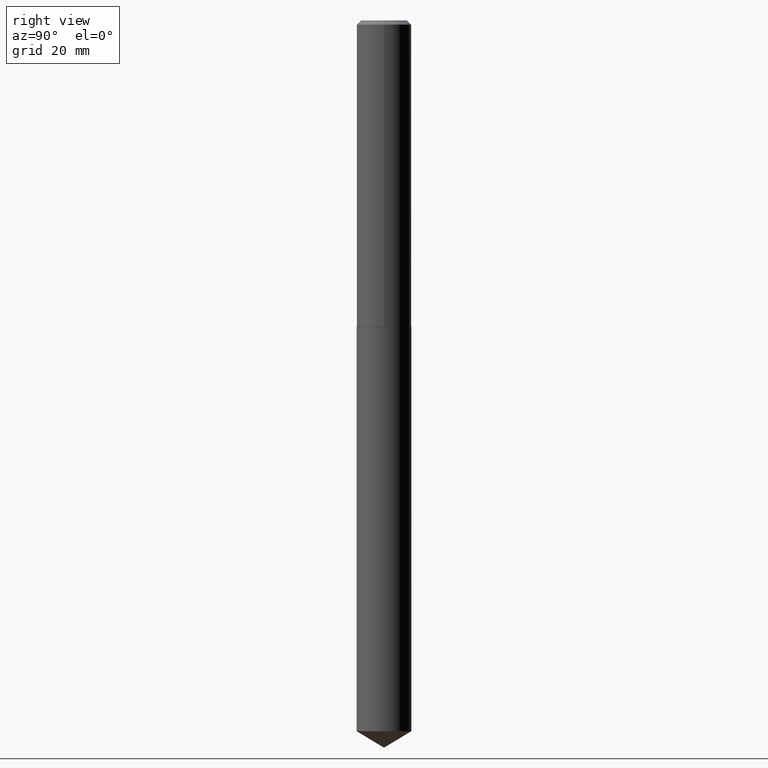
[diagram: clean part render]
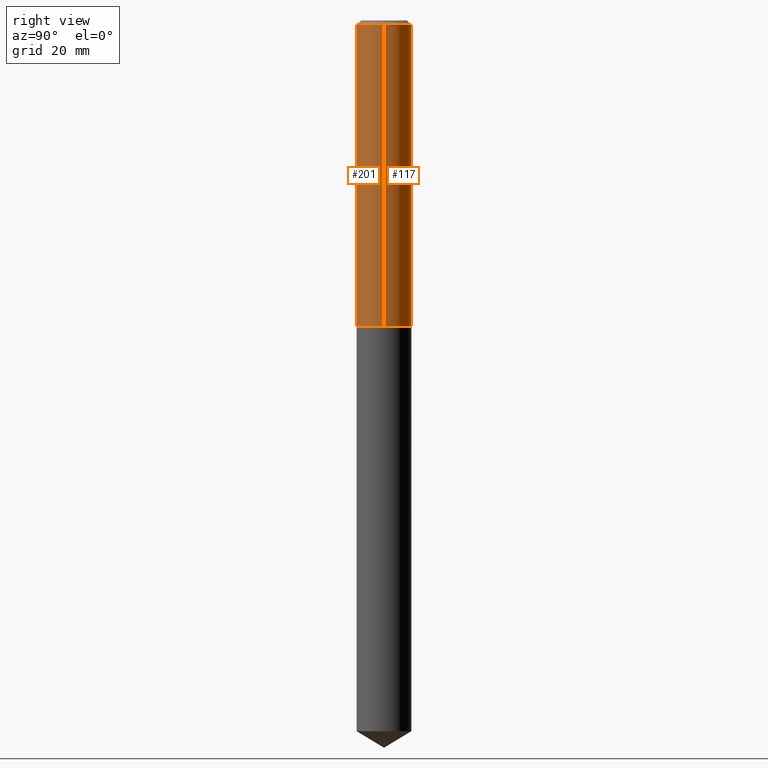
[diagram: same view with one multi-face feature highlighted, each face labeled with its STEP entity id]
A machine part, right view. The highlighted faces form ONE feature: a constant-radius fillet chain: 2 tangent blend faces with common blend radius 5 mm. The faces share edges in the B-rep.
Their STEP definitions:
[1] entity #201 (Cylinder):
#6 = ORIENTED_EDGE ( 'NONE', *, *, #260, .F. ) ;
#30 = VERTEX_POINT ( 'NONE', #242 ) ;
#34 = CARTESIAN_POINT ( 'NONE',  ( 0.000000000000000000, 0.000000000000000000, 0.000000000000000000 ) ) ;
#40 = FACE_OUTER_BOUND ( 'NONE', #273, .T. ) ;
#44 = CARTESIAN_POINT ( 'NONE',  ( 5.390302342593279597E-29, -7.695923167078063988E-15, -2.204200000000000603 ) ) ;
#48 = LINE ( 'NONE', #195, #203 ) ;
#59 = CIRCLE ( 'NONE', #198, 0.1968500000000000250 ) ;
#80 = DIRECTION ( 'NONE',  ( 1.000000000000000000, -6.982962677686264344E-15, 0.000000000000000000 ) ) ;
#108 = DIRECTION ( 'NONE',  ( -2.445468806185136597E-29, 3.491481338843145583E-15, 1.000000000000000000 ) ) ;
#126 = DIRECTION ( 'NONE',  ( -2.445468806185136877E-29, 3.491481338843145188E-15, 1.000000000000000000 ) ) ;
#131 = CARTESIAN_POINT ( 'NONE',  ( -0.1968500000000002748, -6.297219791734305412E-15, -2.204200000000000603 ) ) ;
#151 = EDGE_CURVE ( 'NONE', #269, #290, #158, .T. ) ;
#158 = LINE ( 'NONE', #248, #241 ) ;
#162 = DIRECTION ( 'NONE',  ( 1.000000000000000000, -6.982962677686265922E-15, 0.000000000000000000 ) ) ;
#193 = ORIENTED_EDGE ( 'NONE', *, *, #306, .T. ) ;
#195 = CARTESIAN_POINT ( 'NONE',  ( 0.1968500000000001360, -1.374596203102542594E-15, 9.598753983154306463E-30 ) ) ;
#198 = AXIS2_PLACEMENT_3D ( 'NONE', #368, #108, #162 ) ;
#201 = ADVANCED_FACE ( 'NONE', ( #40 ), #275, .T. ) ;
#203 = VECTOR ( 'NONE', #126, 39.37007874015748143 ) ;
#216 = CARTESIAN_POINT ( 'NONE',  ( -0.1968500000000000250, -2.503812604114697574E-15, -0.03125000000000020123 ) ) ;
#229 = CARTESIAN_POINT ( 'NONE',  ( 0.1968500000000002748, -9.070519370180607174E-15, -2.204200000000000603 ) ) ;
#239 = DIRECTION ( 'NONE',  ( -2.445468806185136597E-29, 3.491481338843145583E-15, 1.000000000000000000 ) ) ;
#241 = VECTOR ( 'NONE', #250, 39.37007874015748143 ) ;
#242 = CARTESIAN_POINT ( 'NONE',  ( 0.1968500000000000250, -1.483704994941390709E-15, -0.03125000000000020123 ) ) ;
#248 = CARTESIAN_POINT ( 'NONE',  ( -0.1968500000000001360, 1.398703375343758182E-15, -9.682923725166790684E-30 ) ) ;
#250 = DIRECTION ( 'NONE',  ( -2.445468806185136877E-29, 3.491481338843145188E-15, 1.000000000000000000 ) ) ;
#256 = AXIS2_PLACEMENT_3D ( 'NONE', #34, #239, #360 ) ;
#260 = EDGE_CURVE ( 'NONE', #290, #30, #59, .T. ) ;
#269 = VERTEX_POINT ( 'NONE', #131 ) ;
#273 = EDGE_LOOP ( 'NONE', ( #304, #367, #193, #6 ) ) ;
#275 = CYLINDRICAL_SURFACE ( 'NONE', #256, 0.1968500000000001360 ) ;
#290 = VERTEX_POINT ( 'NONE', #216 ) ;
#304 = ORIENTED_EDGE ( 'NONE', *, *, #151, .F. ) ;
#306 = EDGE_CURVE ( 'NONE', #371, #30, #48, .T. ) ;
#316 = DIRECTION ( 'NONE',  ( -2.445468806185136597E-29, 3.491481338843145583E-15, 1.000000000000000000 ) ) ;
#325 = EDGE_CURVE ( 'NONE', #269, #371, #338, .T. ) ;
#338 = CIRCLE ( 'NONE', #354, 0.1968500000000002748 ) ;
#354 = AXIS2_PLACEMENT_3D ( 'NONE', #44, #316, #80 ) ;
#360 = DIRECTION ( 'NONE',  ( 1.000000000000000000, -6.982962677686266711E-15, 4.876176775795935793E-29 ) ) ;
#367 = ORIENTED_EDGE ( 'NONE', *, *, #325, .T. ) ;
#368 = CARTESIAN_POINT ( 'NONE',  ( 7.642090019328601786E-31, -1.091087918388490144E-16, -0.03125000000000020123 ) ) ;
#371 = VERTEX_POINT ( 'NONE', #229 ) ;
[2] entity #117 (Cylinder):
#14 = DIRECTION ( 'NONE',  ( -2.445468806185136597E-29, 3.491481338843145583E-15, 1.000000000000000000 ) ) ;
#30 = VERTEX_POINT ( 'NONE', #242 ) ;
#41 = ORIENTED_EDGE ( 'NONE', *, *, #151, .T. ) ;
#48 = LINE ( 'NONE', #195, #203 ) ;
#66 = DIRECTION ( 'NONE',  ( -2.445468806185136597E-29, 3.491481338843145583E-15, 1.000000000000000000 ) ) ;
#75 = DIRECTION ( 'NONE',  ( 1.000000000000000000, -6.982962677686264344E-15, 0.000000000000000000 ) ) ;
#114 = ORIENTED_EDGE ( 'NONE', *, *, #322, .T. ) ;
#117 = ADVANCED_FACE ( 'NONE', ( #342 ), #287, .T. ) ;
#121 = CIRCLE ( 'NONE', #378, 0.1968500000000000250 ) ;
#126 = DIRECTION ( 'NONE',  ( -2.445468806185136877E-29, 3.491481338843145188E-15, 1.000000000000000000 ) ) ;
#131 = CARTESIAN_POINT ( 'NONE',  ( -0.1968500000000002748, -6.297219791734305412E-15, -2.204200000000000603 ) ) ;
#150 = ORIENTED_EDGE ( 'NONE', *, *, #183, .F. ) ;
#151 = EDGE_CURVE ( 'NONE', #269, #290, #158, .T. ) ;
#158 = LINE ( 'NONE', #248, #241 ) ;
#160 = AXIS2_PLACEMENT_3D ( 'NONE', #258, #188, #376 ) ;
#180 = CARTESIAN_POINT ( 'NONE',  ( 7.642090019328601786E-31, -1.091087918388490144E-16, -0.03125000000000020123 ) ) ;
#183 = EDGE_CURVE ( 'NONE', #30, #290, #121, .T. ) ;
#188 = DIRECTION ( 'NONE',  ( -2.445468806185136597E-29, 3.491481338843145583E-15, 1.000000000000000000 ) ) ;
#195 = CARTESIAN_POINT ( 'NONE',  ( 0.1968500000000001360, -1.374596203102542594E-15, 9.598753983154306463E-30 ) ) ;
#203 = VECTOR ( 'NONE', #126, 39.37007874015748143 ) ;
#216 = CARTESIAN_POINT ( 'NONE',  ( -0.1968500000000000250, -2.503812604114697574E-15, -0.03125000000000020123 ) ) ;
#217 = AXIS2_PLACEMENT_3D ( 'NONE', #375, #14, #75 ) ;
#229 = CARTESIAN_POINT ( 'NONE',  ( 0.1968500000000002748, -9.070519370180607174E-15, -2.204200000000000603 ) ) ;
#241 = VECTOR ( 'NONE', #250, 39.37007874015748143 ) ;
#242 = CARTESIAN_POINT ( 'NONE',  ( 0.1968500000000000250, -1.483704994941390709E-15, -0.03125000000000020123 ) ) ;
#248 = CARTESIAN_POINT ( 'NONE',  ( -0.1968500000000001360, 1.398703375343758182E-15, -9.682923725166790684E-30 ) ) ;
#250 = DIRECTION ( 'NONE',  ( -2.445468806185136877E-29, 3.491481338843145188E-15, 1.000000000000000000 ) ) ;
#258 = CARTESIAN_POINT ( 'NONE',  ( 0.000000000000000000, 0.000000000000000000, 0.000000000000000000 ) ) ;
#269 = VERTEX_POINT ( 'NONE', #131 ) ;
#287 = CYLINDRICAL_SURFACE ( 'NONE', #160, 0.1968500000000001360 ) ;
#290 = VERTEX_POINT ( 'NONE', #216 ) ;
#306 = EDGE_CURVE ( 'NONE', #371, #30, #48, .T. ) ;
#307 = CIRCLE ( 'NONE', #217, 0.1968500000000002748 ) ;
#318 = ORIENTED_EDGE ( 'NONE', *, *, #306, .F. ) ;
#320 = EDGE_LOOP ( 'NONE', ( #114, #41, #150, #318 ) ) ;
#322 = EDGE_CURVE ( 'NONE', #371, #269, #307, .T. ) ;
#342 = FACE_OUTER_BOUND ( 'NONE', #320, .T. ) ;
#361 = DIRECTION ( 'NONE',  ( 1.000000000000000000, -6.982962677686265922E-15, 0.000000000000000000 ) ) ;
#371 = VERTEX_POINT ( 'NONE', #229 ) ;
#375 = CARTESIAN_POINT ( 'NONE',  ( 5.390302342593279597E-29, -7.695923167078063988E-15, -2.204200000000000603 ) ) ;
#376 = DIRECTION ( 'NONE',  ( 1.000000000000000000, -6.982962677686266711E-15, 4.876176775795935793E-29 ) ) ;
#378 = AXIS2_PLACEMENT_3D ( 'NONE', #180, #66, #361 ) ;